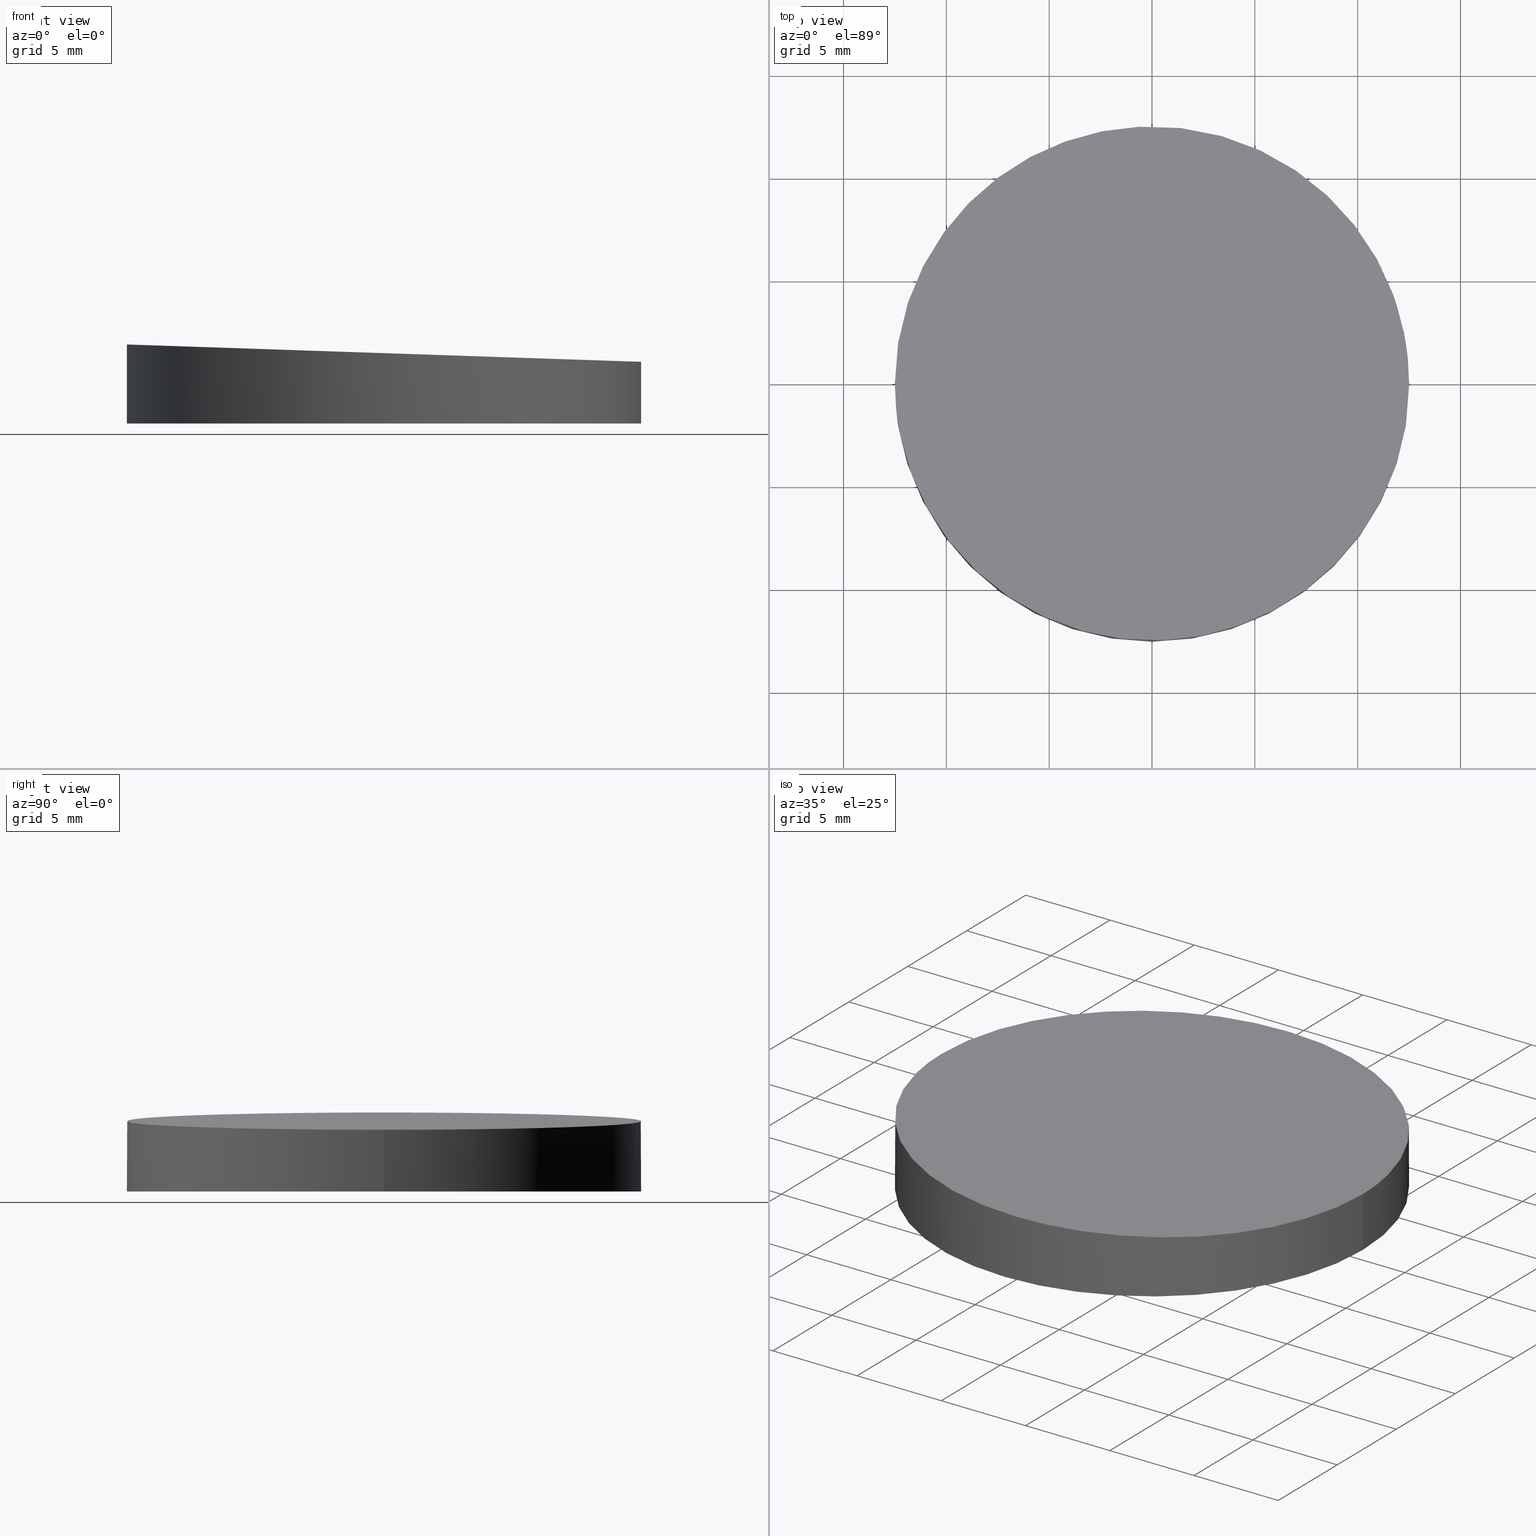
[diagram: canonical four-view strip — front | top / right | iso, engineering-drawing reading convention]
A machine part, canonical four-view strip (front | top / right | iso — engineering-drawing reading convention). The complete STEP part file that produces these views, byte-faithful:
ISO-10303-21;
HEADER;
FILE_DESCRIPTION (( 'STEP AP203' ),
    '1' );
FILE_NAME ('373501.STEP',
    '2019-07-24T07:27:27',
    ( '' ),
    ( '' ),
    'SwSTEP 2.0',
    'SolidWorks 2016',
    '' );
FILE_SCHEMA (( 'CONFIG_CONTROL_DESIGN' ));
ENDSEC;

DATA;
#1 = EDGE_CURVE ( 'NONE', #200, #226, #167, .T. ) ;
#2 = CALENDAR_DATE ( 2019, 24, 7 ) ;
#3 = COORDINATED_UNIVERSAL_TIME_OFFSET ( 8, 0, .AHEAD. ) ;
#4 = APPROVAL ( #135, 'δָ��' ) ;
#5 = DIRECTION ( 'NONE',  ( -0.0000000000000000000, -0.0000000000000000000, -1.000000000000000000 ) ) ;
#6 = ORIENTED_EDGE ( 'NONE', *, *, #8, .F. ) ;
#7 = PLANE ( 'NONE',  #66 ) ;
#8 = EDGE_CURVE ( 'NONE', #53, #226, #121, .T. ) ;
#9 = CARTESIAN_POINT ( 'NONE',  ( 12.49999999999999600, 1.530808498934191100E-015, 0.0000000000000000000 ) ) ;
#10 = DIRECTION ( 'NONE',  ( 1.000000000000000000, 0.0000000000000000000, 0.0000000000000000000 ) ) ;
#11 = COORDINATED_UNIVERSAL_TIME_OFFSET ( 8, 0, .AHEAD. ) ;
#12 = APPROVAL_STATUS ( 'not_yet_approved' ) ;
#13 = APPROVAL_DATE_TIME ( #125, #141 ) ;
#14 = ADVANCED_FACE ( 'NONE', ( #211 ), #110, .T. ) ;
#15 = APPROVAL_ROLE ( '' ) ;
#16 = APPLICATION_PROTOCOL_DEFINITION ( 'international standard', 'config_control_design', 1994, #174 ) ;
#17 = ORIENTED_EDGE ( 'NONE', *, *, #217, .F. ) ;
#18 = PERSON_AND_ORGANIZATION ( #94, #186 ) ;
#19 = DESIGN_CONTEXT ( 'detailed design', #229, 'design' ) ;
#20 = DATE_AND_TIME ( #147, #183 ) ;
#21 = CC_DESIGN_APPROVAL ( #49, ( #129 ) ) ;
#22 = CC_DESIGN_APPROVAL ( #26, ( #242 ) ) ;
#23 = VECTOR ( 'NONE', #149, 1000.000000000000000 ) ;
#24 = DATE_AND_TIME ( #67, #82 ) ;
#25 = CARTESIAN_POINT ( 'NONE',  ( -12.49999999999999600, 0.0000000000000000000, 0.0000000000000000000 ) ) ;
#26 = APPROVAL ( #215, 'δָ��' ) ;
#27 = DIRECTION ( 'NONE',  ( 0.0000000000000000000, 0.0000000000000000000, 1.000000000000000000 ) ) ;
#28 = CARTESIAN_POINT ( 'NONE',  ( 12.50000000000000000, 24.99999999999998900, 3.000000000000000400 ) ) ;
#29 = DESIGN_CONTEXT ( 'detailed design', #245, 'design' ) ;
#30 = PERSON_AND_ORGANIZATION_ROLE ( 'creator' ) ;
#31 = COORDINATED_UNIVERSAL_TIME_OFFSET ( 8, 0, .AHEAD. ) ;
#32 = APPROVAL_STATUS ( 'not_yet_approved' ) ;
#33 = CARTESIAN_POINT ( 'NONE',  ( 0.0000000000000000000, 0.0000000000000000000, 0.0000000000000000000 ) ) ;
#34 = CC_DESIGN_PERSON_AND_ORGANIZATION_ASSIGNMENT ( #173, #52, ( #79 ) ) ;
#35 = DATE_TIME_ROLE ( 'classification_date' ) ;
#36 = APPROVAL_ROLE ( '' ) ;
#37 = AXIS2_PLACEMENT_3D ( 'NONE', #47, #27, #228 ) ;
#38 = COORDINATED_UNIVERSAL_TIME_OFFSET ( 8, 0, .AHEAD. ) ;
#39 = CC_DESIGN_DATE_AND_TIME_ASSIGNMENT ( #203, #117, ( #126 ) ) ;
#40 = ORIENTED_EDGE ( 'NONE', *, *, #240, .F. ) ;
#41 = CC_DESIGN_DATE_AND_TIME_ASSIGNMENT ( #202, #189, ( #129 ) ) ;
#42 = PERSON_AND_ORGANIZATION ( #94, #186 ) ;
#43 = CC_DESIGN_SECURITY_CLASSIFICATION ( #129, ( #242 ) ) ;
#44 = CC_DESIGN_APPROVAL ( #4, ( #234 ) ) ;
#45 = CARTESIAN_POINT ( 'NONE',  ( 12.49999999999999600, 1.530808498934191100E-015, 3.000000000000000000 ) ) ;
#46 = PERSON_AND_ORGANIZATION ( #94, #186 ) ;
#47 = CARTESIAN_POINT ( 'NONE',  ( 0.0000000000000000000, 0.0000000000000000000, 0.0000000000000000000 ) ) ;
#48 = CARTESIAN_POINT ( 'NONE',  ( -12.49999999999999600, 0.0000000000000000000, 3.842440018503553700 ) ) ;
#49 = APPROVAL ( #231, 'δָ��' ) ;
#50 = PLANE ( 'NONE',  #124 ) ;
#51 = UNCERTAINTY_MEASURE_WITH_UNIT (LENGTH_MEASURE( 1.000000000000000100E-005 ), #77, 'distance_accuracy_value', 'NONE');
#52 = PERSON_AND_ORGANIZATION_ROLE ( 'design_supplier' ) ;
#53 = VERTEX_POINT ( 'NONE', #25 ) ;
#54 = PERSON_AND_ORGANIZATION_ROLE ( 'classification_officer' ) ;
#55 = CALENDAR_DATE ( 2019, 24, 7 ) ;
#56 = PERSON_AND_ORGANIZATION ( #94, #186 ) ;
#57 =( NAMED_UNIT ( * ) SI_UNIT ( $, .STERADIAN. ) SOLID_ANGLE_UNIT ( ) );
#58 = APPROVAL_ROLE ( '' ) ;
#59 = APPROVAL ( #12, 'δָ��' ) ;
#60 = AXIS2_PLACEMENT_3D ( 'NONE', #112, #5, #128 ) ;
#61 = LOCAL_TIME ( 15, 27, 27.00000000000000000, #11 ) ;
#62 = EDGE_CURVE ( 'NONE', #200, #164, #65, .T. ) ;
#63 = APPROVAL_PERSON_ORGANIZATION ( #223, #49, #114 ) ;
#64 = CC_DESIGN_PERSON_AND_ORGANIZATION_ASSIGNMENT ( #85, #233, ( #191 ) ) ;
#65 =( BOUNDED_CURVE ( )  B_SPLINE_CURVE ( 3, ( #209, #207, #185, #244 ),
 .UNSPECIFIED., .F., .F. ) 
 B_SPLINE_CURVE_WITH_KNOTS ( ( 4, 4 ),
 ( 0.0000000000000000000, 3.141592653589793100 ),
 .UNSPECIFIED. ) 
 CURVE ( )  GEOMETRIC_REPRESENTATION_ITEM ( )  RATIONAL_B_SPLINE_CURVE ( ( 1.000000000000000000, 0.3333333333333333700, 0.3333333333333333700, 1.000000000000000000 ) ) 
 REPRESENTATION_ITEM ( '' )  );
#66 = AXIS2_PLACEMENT_3D ( 'NONE', #111, #225, #150 ) ;
#67 = CALENDAR_DATE ( 2019, 24, 7 ) ;
#68 = ORIENTED_EDGE ( 'NONE', *, *, #62, .T. ) ;
#69 = DIRECTION ( 'NONE',  ( -0.0000000000000000000, -0.0000000000000000000, -1.000000000000000000 ) ) ;
#70 = CARTESIAN_POINT ( 'NONE',  ( 12.49999999999999600, 1.530808498934191100E-015, 10.00000000000000000 ) ) ;
#71 = ADVANCED_BREP_SHAPE_REPRESENTATION ( '373501', ( #206, #143 ), #120 ) ;
#72 = CARTESIAN_POINT ( 'NONE',  ( 0.0000000000000000000, 0.0000000000000000000, 10.00000000000000000 ) ) ;
#73 = ORIENTED_EDGE ( 'NONE', *, *, #62, .F. ) ;
#74 = CC_DESIGN_DATE_AND_TIME_ASSIGNMENT ( #102, #170, ( #181 ) ) ;
#75 = CALENDAR_DATE ( 2019, 24, 7 ) ;
#76 = LOCAL_TIME ( 15, 27, 27.00000000000000000, #3 ) ;
#77 =( LENGTH_UNIT ( ) NAMED_UNIT ( * ) SI_UNIT ( .MILLI., .METRE. ) );
#78 = CARTESIAN_POINT ( 'NONE',  ( 0.0000000000000000000, 0.0000000000000000000, 0.0000000000000000000 ) ) ;
#79 = PRODUCT_DEFINITION_FORMATION_WITH_SPECIFIED_SOURCE ( '�κ�', '', #177, .NOT_KNOWN. ) ;
#80 = PERSON_AND_ORGANIZATION_ROLE ( 'creator' ) ;
#81 = ORIENTED_EDGE ( 'NONE', *, *, #1, .F. ) ;
#82 = LOCAL_TIME ( 15, 27, 27.00000000000000000, #38 ) ;
#83 = DATE_AND_TIME ( #75, #165 ) ;
#84 = EDGE_LOOP ( 'NONE', ( #241, #118, #252, #17 ) ) ;
#85 = PERSON_AND_ORGANIZATION ( #94, #186 ) ;
#86 = APPROVAL ( #119, 'δָ��' ) ;
#87 = PRODUCT_DEFINITION_SHAPE ( 'NONE', 'NONE',  #126 ) ;
#88 = CARTESIAN_POINT ( 'NONE',  ( -12.49999999999999600, 0.0000000000000000000, 10.00000000000000000 ) ) ;
#89 = CARTESIAN_POINT ( 'NONE',  ( -12.50000000000000500, 24.99999999999998900, 3.842440018503554500 ) ) ;
#90 = DIRECTION ( 'NONE',  ( -1.000000000000000000, 0.0000000000000000000, 0.0000000000000000000 ) ) ;
#91 = APPLICATION_PROTOCOL_DEFINITION ( 'international standard', 'config_control_design', 1994, #194 ) ;
#92 = PERSON_AND_ORGANIZATION_ROLE ( 'design_supplier' ) ;
#93 = LOCAL_TIME ( 15, 27, 27.00000000000000000, #152 ) ;
#94 = PERSON ( 'δָ��', 'δָ��', 'δָ��', ('δָ��'), ('δָ��'), ('δָ��') ) ;
#95 = CARTESIAN_POINT ( 'NONE',  ( 0.0000000000000000000, 0.0000000000000000000, 0.0000000000000000000 ) ) ;
#96 = SHAPE_DEFINITION_REPRESENTATION ( #87, #71 ) ;
#97 = PERSON_AND_ORGANIZATION ( #94, #186 ) ;
#98 = DIRECTION ( 'NONE',  ( 0.0000000000000000000, 0.0000000000000000000, 1.000000000000000000 ) ) ;
#99 = SECURITY_CLASSIFICATION_LEVEL ( 'unclassified' ) ;
#100 = CC_DESIGN_PERSON_AND_ORGANIZATION_ASSIGNMENT ( #219, #188, ( #234 ) ) ;
#101 = AXIS2_PLACEMENT_3D ( 'NONE', #72, #69, #90 ) ;
#102 = DATE_AND_TIME ( #145, #93 ) ;
#103 = LOCAL_TIME ( 15, 27, 27.00000000000000000, #113 ) ;
#104 = LOCAL_TIME ( 15, 27, 27.00000000000000000, #132 ) ;
#105 = CC_DESIGN_SECURITY_CLASSIFICATION ( #234, ( #79 ) ) ;
#106 = ORIENTED_EDGE ( 'NONE', *, *, #196, .F. ) ;
#107 = APPROVAL_DATE_TIME ( #160, #86 ) ;
#108 = LOCAL_TIME ( 15, 27, 27.00000000000000000, #171 ) ;
#109 = DATE_AND_TIME ( #122, #162 ) ;
#110 = CYLINDRICAL_SURFACE ( 'NONE', #101, 12.49999999999999600 ) ;
#111 = CARTESIAN_POINT ( 'NONE',  ( 0.0000000000000000000, 0.0000000000000000000, 0.0000000000000000000 ) ) ;
#112 = CARTESIAN_POINT ( 'NONE',  ( 0.0000000000000000000, 0.0000000000000000000, 10.00000000000000000 ) ) ;
#113 = COORDINATED_UNIVERSAL_TIME_OFFSET ( 8, 0, .AHEAD. ) ;
#114 = APPROVAL_ROLE ( '' ) ;
#115 = APPROVAL_PERSON_ORGANIZATION ( #46, #4, #15 ) ;
#116 = DIRECTION ( 'NONE',  ( -0.03367848472911320900, 0.0000000000000000000, -0.9994327189292688800 ) ) ;
#117 = DATE_TIME_ROLE ( 'creation_date' ) ;
#118 = ORIENTED_EDGE ( 'NONE', *, *, #1, .T. ) ;
#119 = APPROVAL_STATUS ( 'not_yet_approved' ) ;
#120 =( GEOMETRIC_REPRESENTATION_CONTEXT ( 3 ) GLOBAL_UNCERTAINTY_ASSIGNED_CONTEXT ( ( #51 ) ) GLOBAL_UNIT_ASSIGNED_CONTEXT ( ( #77, #251, #57 ) ) REPRESENTATION_CONTEXT ( 'NONE', 'WORKASPACE' ) );
#121 = CIRCLE ( 'NONE', #37, 12.49999999999999600 ) ;
#122 = CALENDAR_DATE ( 2019, 24, 7 ) ;
#123 = CLOSED_SHELL ( 'NONE', ( #14, #154, #227, #246 ) ) ;
#124 = AXIS2_PLACEMENT_3D ( 'NONE', #187, #116, #232 ) ;
#125 = DATE_AND_TIME ( #230, #104 ) ;
#126 = PRODUCT_DEFINITION ( 'δ֪', '', #242, #29 ) ;
#127 = EDGE_LOOP ( 'NONE', ( #81, #68, #139, #220 ) ) ;
#128 = DIRECTION ( 'NONE',  ( -1.000000000000000000, 0.0000000000000000000, 0.0000000000000000000 ) ) ;
#129 = SECURITY_CLASSIFICATION ( '', '', #99 ) ;
#130 = CYLINDRICAL_SURFACE ( 'NONE', #60, 12.49999999999999600 ) ;
#131 = DIRECTION ( 'NONE',  ( -0.0000000000000000000, -0.0000000000000000000, -1.000000000000000000 ) ) ;
#132 = COORDINATED_UNIVERSAL_TIME_OFFSET ( 8, 0, .AHEAD. ) ;
#133 = APPLICATION_PROTOCOL_DEFINITION ( 'international standard', 'config_control_design', 1994, #245 ) ;
#134 = PRODUCT_RELATED_PRODUCT_CATEGORY ( 'detail', '', ( #191 ) ) ;
#135 = APPROVAL_STATUS ( 'not_yet_approved' ) ;
#136 = CC_DESIGN_PERSON_AND_ORGANIZATION_ASSIGNMENT ( #146, #212, ( #242 ) ) ;
#137 = COORDINATED_UNIVERSAL_TIME_OFFSET ( 8, 0, .AHEAD. ) ;
#138 = PERSON_AND_ORGANIZATION_ROLE ( 'creator' ) ;
#139 = ORIENTED_EDGE ( 'NONE', *, *, #217, .T. ) ;
#140 = AXIS2_PLACEMENT_3D ( 'NONE', #95, #98, #176 ) ;
#141 = APPROVAL ( #32, 'δָ��' ) ;
#142 = FACE_OUTER_BOUND ( 'NONE', #175, .T. ) ;
#143 = AXIS2_PLACEMENT_3D ( 'NONE', #33, #190, #10 ) ;
#144 =( BOUNDED_CURVE ( )  B_SPLINE_CURVE ( 3, ( #48, #89, #28, #45 ),
 .UNSPECIFIED., .F., .F. ) 
 B_SPLINE_CURVE_WITH_KNOTS ( ( 4, 4 ),
 ( 3.141592653589793100, 6.283185307179586200 ),
 .UNSPECIFIED. ) 
 CURVE ( )  GEOMETRIC_REPRESENTATION_ITEM ( )  RATIONAL_B_SPLINE_CURVE ( ( 1.000000000000000000, 0.3333333333333333700, 0.3333333333333333700, 1.000000000000000000 ) ) 
 REPRESENTATION_ITEM ( '' )  );
#145 = CALENDAR_DATE ( 2019, 24, 7 ) ;
#146 = PERSON_AND_ORGANIZATION ( #94, #186 ) ;
#147 = CALENDAR_DATE ( 2019, 24, 7 ) ;
#148 = CC_DESIGN_PERSON_AND_ORGANIZATION_ASSIGNMENT ( #18, #92, ( #242 ) ) ;
#149 = DIRECTION ( 'NONE',  ( -0.0000000000000000000, -0.0000000000000000000, -1.000000000000000000 ) ) ;
#150 = DIRECTION ( 'NONE',  ( 1.000000000000000000, 0.0000000000000000000, -0.0000000000000000000 ) ) ;
#151 = CC_DESIGN_PERSON_AND_ORGANIZATION_ASSIGNMENT ( #239, #54, ( #129 ) ) ;
#152 = COORDINATED_UNIVERSAL_TIME_OFFSET ( 8, 0, .AHEAD. ) ;
#153 = APPROVAL_DATE_TIME ( #83, #26 ) ;
#154 = ADVANCED_FACE ( 'NONE', ( #201 ), #130, .T. ) ;
#155 = PERSON_AND_ORGANIZATION ( #94, #186 ) ;
#156 = DIRECTION ( 'NONE',  ( 0.0000000000000000000, 0.0000000000000000000, 1.000000000000000000 ) ) ;
#157 = CC_DESIGN_APPROVAL ( #141, ( #126 ) ) ;
#158 = MECHANICAL_CONTEXT ( 'NONE', #174, 'mechanical' ) ;
#159 = CC_DESIGN_PERSON_AND_ORGANIZATION_ASSIGNMENT ( #236, #248, ( #177 ) ) ;
#160 = DATE_AND_TIME ( #2, #61 ) ;
#161 = CALENDAR_DATE ( 2019, 24, 7 ) ;
#162 = LOCAL_TIME ( 15, 27, 27.00000000000000000, #249 ) ;
#163 = CIRCLE ( 'NONE', #168, 12.49999999999999600 ) ;
#164 = VERTEX_POINT ( 'NONE', #204 ) ;
#165 = LOCAL_TIME ( 15, 27, 27.00000000000000000, #137 ) ;
#166 = CC_DESIGN_APPROVAL ( #59, ( #79 ) ) ;
#167 = LINE ( 'NONE', #70, #23 ) ;
#168 = AXIS2_PLACEMENT_3D ( 'NONE', #78, #156, #192 ) ;
#169 = APPROVAL_PERSON_ORGANIZATION ( #222, #86, #36 ) ;
#170 = DATE_TIME_ROLE ( 'creation_date' ) ;
#171 = COORDINATED_UNIVERSAL_TIME_OFFSET ( 8, 0, .AHEAD. ) ;
#172 = APPROVAL_ROLE ( '' ) ;
#173 = PERSON_AND_ORGANIZATION ( #94, #186 ) ;
#174 = APPLICATION_CONTEXT ( 'configuration controlled 3d designs of mechanical parts and assemblies' ) ;
#175 = EDGE_LOOP ( 'NONE', ( #106, #73 ) ) ;
#176 = DIRECTION ( 'NONE',  ( 1.000000000000000000, 0.0000000000000000000, 0.0000000000000000000 ) ) ;
#177 = PRODUCT ( '373501', '373501', '', ( #158 ) ) ;
#178 = APPROVAL_DATE_TIME ( #20, #4 ) ;
#179 = LINE ( 'NONE', #88, #216 ) ;
#180 = PRODUCT_RELATED_PRODUCT_CATEGORY ( 'detail', '', ( #177 ) ) ;
#181 = PRODUCT_DEFINITION ( 'δ֪', '', #79, #19 ) ;
#182 = FACE_OUTER_BOUND ( 'NONE', #218, .T. ) ;
#183 = LOCAL_TIME ( 15, 27, 27.00000000000000000, #31 ) ;
#184 = APPROVAL_DATE_TIME ( #198, #49 ) ;
#185 = CARTESIAN_POINT ( 'NONE',  ( -12.50000000000000000, -24.99999999999998900, 3.842440018503554500 ) ) ;
#186 = ORGANIZATION ( 'δָ��', 'δָ��', '' ) ;
#187 = CARTESIAN_POINT ( 'NONE',  ( 12.49999999999999600, -25.00000000000000000, 3.000000000000000000 ) ) ;
#188 = PERSON_AND_ORGANIZATION_ROLE ( 'classification_officer' ) ;
#189 = DATE_TIME_ROLE ( 'classification_date' ) ;
#190 = DIRECTION ( 'NONE',  ( 0.0000000000000000000, 0.0000000000000000000, 1.000000000000000000 ) ) ;
#191 = PRODUCT ( '373501', '373501', '', ( #235 ) ) ;
#192 = DIRECTION ( 'NONE',  ( 1.000000000000000000, 0.0000000000000000000, 0.0000000000000000000 ) ) ;
#193 = CC_DESIGN_PERSON_AND_ORGANIZATION_ASSIGNMENT ( #253, #80, ( #126 ) ) ;
#194 = APPLICATION_CONTEXT ( 'configuration controlled 3d designs of mechanical parts and assemblies' ) ;
#195 = CC_DESIGN_APPROVAL ( #86, ( #181 ) ) ;
#196 = EDGE_CURVE ( 'NONE', #164, #200, #144, .T. ) ;
#197 = APPROVAL_PERSON_ORGANIZATION ( #247, #59, #250 ) ;
#198 = DATE_AND_TIME ( #161, #108 ) ;
#199 = APPROVAL_DATE_TIME ( #24, #59 ) ;
#200 = VERTEX_POINT ( 'NONE', #243 ) ;
#201 = FACE_OUTER_BOUND ( 'NONE', #127, .T. ) ;
#202 = DATE_AND_TIME ( #55, #103 ) ;
#203 = DATE_AND_TIME ( #213, #76 ) ;
#204 = CARTESIAN_POINT ( 'NONE',  ( -12.49999999999999600, 0.0000000000000000000, 3.842440018503553700 ) ) ;
#205 = CC_DESIGN_DATE_AND_TIME_ASSIGNMENT ( #109, #35, ( #234 ) ) ;
#206 = MANIFOLD_SOLID_BREP ( '�г�-����1', #123 ) ;
#207 = CARTESIAN_POINT ( 'NONE',  ( 12.50000000000000000, -24.99999999999998900, 3.000000000000000400 ) ) ;
#208 = CC_DESIGN_PERSON_AND_ORGANIZATION_ASSIGNMENT ( #42, #30, ( #181 ) ) ;
#209 = CARTESIAN_POINT ( 'NONE',  ( 12.49999999999999600, 1.530808498934191100E-015, 3.000000000000000000 ) ) ;
#210 = SECURITY_CLASSIFICATION_LEVEL ( 'unclassified' ) ;
#211 = FACE_OUTER_BOUND ( 'NONE', #84, .T. ) ;
#212 = PERSON_AND_ORGANIZATION_ROLE ( 'creator' ) ;
#213 = CALENDAR_DATE ( 2019, 24, 7 ) ;
#214 = APPLICATION_PROTOCOL_DEFINITION ( 'international standard', 'config_control_design', 1994, #229 ) ;
#215 = APPROVAL_STATUS ( 'not_yet_approved' ) ;
#216 = VECTOR ( 'NONE', #131, 1000.000000000000000 ) ;
#217 = EDGE_CURVE ( 'NONE', #164, #53, #179, .T. ) ;
#218 = EDGE_LOOP ( 'NONE', ( #6, #40 ) ) ;
#219 = PERSON_AND_ORGANIZATION ( #94, #186 ) ;
#220 = ORIENTED_EDGE ( 'NONE', *, *, #8, .T. ) ;
#221 = PRODUCT_DEFINITION_SHAPE ( 'NONE', 'NONE',  #181 ) ;
#222 = PERSON_AND_ORGANIZATION ( #94, #186 ) ;
#223 = PERSON_AND_ORGANIZATION ( #94, #186 ) ;
#224 = APPROVAL_PERSON_ORGANIZATION ( #155, #26, #172 ) ;
#225 = DIRECTION ( 'NONE',  ( 0.0000000000000000000, 0.0000000000000000000, 1.000000000000000000 ) ) ;
#226 = VERTEX_POINT ( 'NONE', #9 ) ;
#227 = ADVANCED_FACE ( 'NONE', ( #182 ), #7, .F. ) ;
#228 = DIRECTION ( 'NONE',  ( 1.000000000000000000, 0.0000000000000000000, 0.0000000000000000000 ) ) ;
#229 = APPLICATION_CONTEXT ( 'configuration controlled 3d designs of mechanical parts and assemblies' ) ;
#230 = CALENDAR_DATE ( 2019, 24, 7 ) ;
#231 = APPROVAL_STATUS ( 'not_yet_approved' ) ;
#232 = DIRECTION ( 'NONE',  ( -0.9994327189292688800, 0.0000000000000000000, 0.03367848472911320900 ) ) ;
#233 = PERSON_AND_ORGANIZATION_ROLE ( 'design_owner' ) ;
#234 = SECURITY_CLASSIFICATION ( '', '', #210 ) ;
#235 = MECHANICAL_CONTEXT ( 'NONE', #194, 'mechanical' ) ;
#236 = PERSON_AND_ORGANIZATION ( #94, #186 ) ;
#237 = APPROVAL_PERSON_ORGANIZATION ( #56, #141, #58 ) ;
#238 = CC_DESIGN_PERSON_AND_ORGANIZATION_ASSIGNMENT ( #97, #138, ( #79 ) ) ;
#239 = PERSON_AND_ORGANIZATION ( #94, #186 ) ;
#240 = EDGE_CURVE ( 'NONE', #226, #53, #163, .T. ) ;
#241 = ORIENTED_EDGE ( 'NONE', *, *, #196, .T. ) ;
#242 = PRODUCT_DEFINITION_FORMATION_WITH_SPECIFIED_SOURCE ( '�κ�', '', #191, .NOT_KNOWN. ) ;
#243 = CARTESIAN_POINT ( 'NONE',  ( 12.49999999999999600, 1.530808498934191100E-015, 3.000000000000000000 ) ) ;
#244 = CARTESIAN_POINT ( 'NONE',  ( -12.49999999999999600, 0.0000000000000000000, 3.842440018503553700 ) ) ;
#245 = APPLICATION_CONTEXT ( 'configuration controlled 3d designs of mechanical parts and assemblies' ) ;
#246 = ADVANCED_FACE ( 'NONE', ( #142 ), #50, .F. ) ;
#247 = PERSON_AND_ORGANIZATION ( #94, #186 ) ;
#248 = PERSON_AND_ORGANIZATION_ROLE ( 'design_owner' ) ;
#249 = COORDINATED_UNIVERSAL_TIME_OFFSET ( 8, 0, .AHEAD. ) ;
#250 = APPROVAL_ROLE ( '' ) ;
#251 =( NAMED_UNIT ( * ) PLANE_ANGLE_UNIT ( ) SI_UNIT ( $, .RADIAN. ) );
#252 = ORIENTED_EDGE ( 'NONE', *, *, #240, .T. ) ;
#253 = PERSON_AND_ORGANIZATION ( #94, #186 ) ;
ENDSEC;
END-ISO-10303-21;
